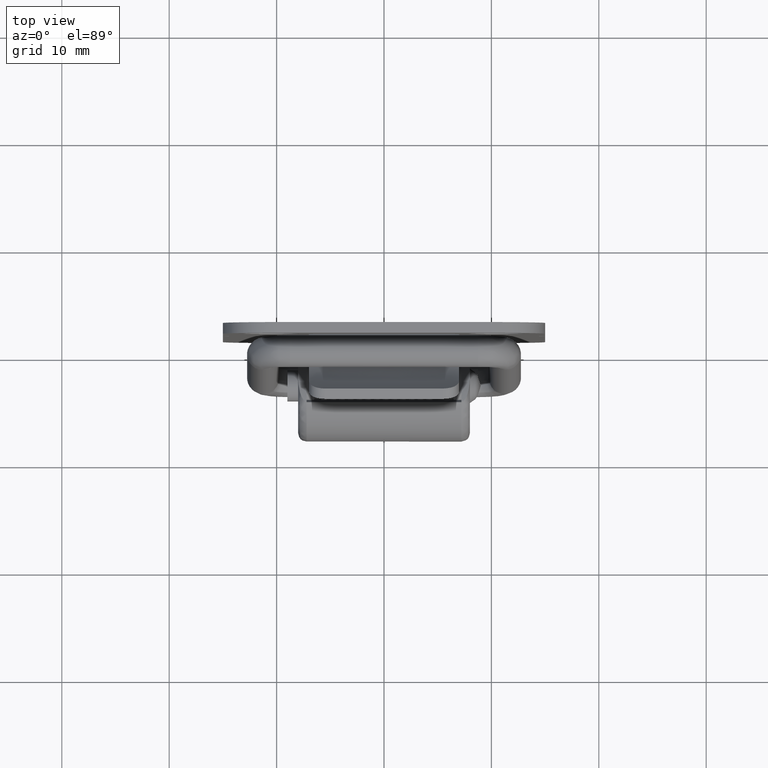
[diagram: clean part render]
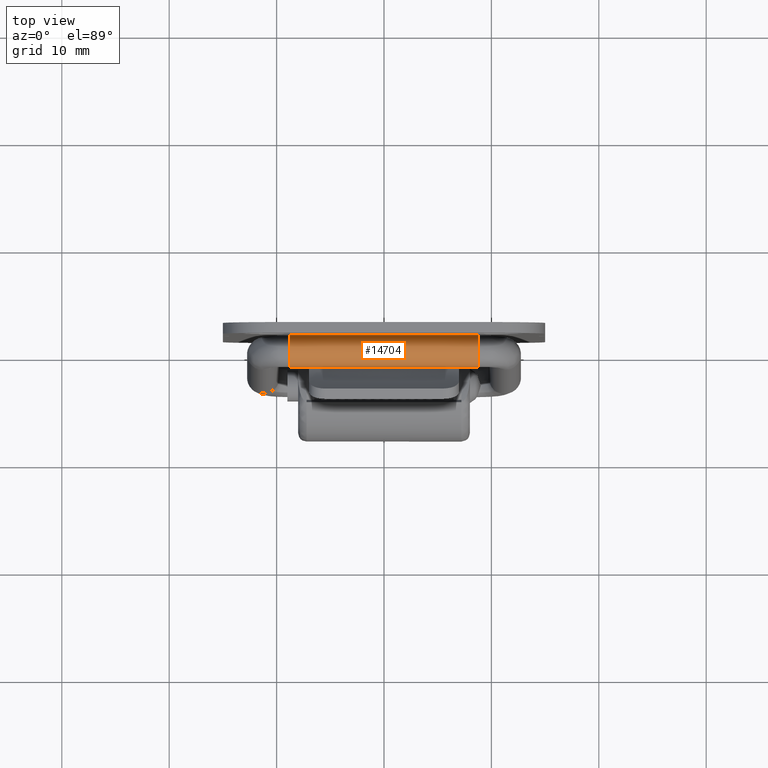
[diagram: same view with one face highlighted and labeled with its STEP entity id]
A machine part, top view. The second image highlights one B-rep face of the part: STEP entity #14704.
In plain terms, the highlighted face is a freeform B-spline surface patch.
Its self-contained STEP definition (entity closure, byte-faithful):
#14562=CARTESIAN_POINT('',(0.234948679502595,-9.187500000000004,-1.481485567850872));
#14563=CARTESIAN_POINT('',(0.012398297319986,-9.187500000000002,-1.516779804518793));
#14564=CARTESIAN_POINT('',(-0.210699301480883,-9.187500000000002,-1.485128309121532));
#14565=CARTESIAN_POINT('',(-1.695827500109997,-9.187500000000002,-1.274428917483493));
#14566=CARTESIAN_POINT('',(-1.485128108471958,-9.187500000000002,0.210699281145622));
#14567=CARTESIAN_POINT('',(-1.274428716833919,-9.187500000000002,1.695827479774737));
#14568=CARTESIAN_POINT('',(0.210699481795196,-9.187500000000002,1.485128088136697));
#14569=CARTESIAN_POINT('',(1.695827680424311,-9.187500000000002,1.274428696498658));
#14570=CARTESIAN_POINT('',(1.485128288786271,-9.187500000000002,-0.210699502130457));
#14571=CARTESIAN_POINT('',(0.234948679502595,9.198437500000001,-1.481485567850875));
#14572=CARTESIAN_POINT('',(0.012398297319986,9.198437500000001,-1.516779804518796));
#14573=CARTESIAN_POINT('',(-0.210699301480883,9.198437500000001,-1.485128309121536));
#14574=CARTESIAN_POINT('',(-1.695827500109997,9.198437500000001,-1.274428917483496));
#14575=CARTESIAN_POINT('',(-1.485128108471959,9.198437500000001,0.210699281145619));
#14576=CARTESIAN_POINT('',(-1.274428716833919,9.198437500000001,1.695827479774734));
#14577=CARTESIAN_POINT('',(0.210699481795196,9.198437500000001,1.485128088136694));
#14578=CARTESIAN_POINT('',(1.695827680424310,9.198437500000001,1.274428696498654));
#14579=CARTESIAN_POINT('',(1.485128288786271,9.198437500000001,-0.210699502130460));
#14587=(BOUNDED_SURFACE()B_SPLINE_SURFACE(2,1,((#14562,#14571),(#14563,#14572),(#14564,#14573),(#14565,#14574),(#14566,#14575),(#14567,#14576),(#14568,#14577),(#14569,#14578),(#14570,#14579)),.UNSPECIFIED.,.F.,.F.,.U.)B_SPLINE_SURFACE_WITH_KNOTS((3,2,2,2,3),(2,2),(1.256637061435917,1.570796326794897,3.141592653589793,4.712388980384690,6.283185307179586),(0.0,18.385937500000011),.UNSPECIFIED.)GEOMETRIC_REPRESENTATION_ITEM()RATIONAL_B_SPLINE_SURFACE(((0.906274169979695,0.906274169979695),(0.941421356237309,0.941421356237309),(1.0,1.0),(0.707106781186548,0.707106781186548),(1.0,1.0),(0.707106781186548,0.707106781186548),(1.0,1.0),(0.707106781186548,0.707106781186548),(1.0,1.0)))REPRESENTATION_ITEM('')SURFACE());
#14588=CARTESIAN_POINT('',(0.234948017487145,8.749999998100304,-1.481481167774071));
#14589=VERTEX_POINT('',#14588);
#14590=CARTESIAN_POINT('',(-0.300971212194639,8.750000000000000,-1.469495355520995));
#14591=VERTEX_POINT('',#14590);
#14592=CARTESIAN_POINT('',(0.234948017487145,8.749999998100304,-1.481481167774071));
#14593=CARTESIAN_POINT('',(0.057514757330716,8.749999998726720,-1.509560078205854));
#14594=CARTESIAN_POINT('',(-0.124975351299805,8.749999999373596,-1.505542946763044));
#14595=CARTESIAN_POINT('',(-0.300971212194639,8.750000000000000,-1.469495355520995));
#14596=B_SPLINE_CURVE_WITH_KNOTS('',3,(#14592,#14593,#14594,#14595),.UNSPECIFIED.,.F.,.U.,(4,4),(0.942815926448860,1.0),.UNSPECIFIED.);
#14597=EDGE_CURVE('',#14589,#14591,#14596,.T.);
#14598=ORIENTED_EDGE('',*,*,#14597,.F.);
#14599=CARTESIAN_POINT('',(0.234834548971930,-8.750000000000000,-1.480769904402036));
#14600=VERTEX_POINT('',#14599);
#14601=CARTESIAN_POINT('',(0.234834548971930,-8.750000000000000,-1.480769904402036));
#14602=CARTESIAN_POINT('',(0.234948017487145,8.749999998100304,-1.481481167774071));
#14603=QUASI_UNIFORM_CURVE('',1,(#14601,#14602),.UNSPECIFIED.,.F.,.U.);
#14604=EDGE_CURVE('',#14600,#14589,#14603,.T.);
#14605=ORIENTED_EDGE('',*,*,#14604,.F.);
#14606=CARTESIAN_POINT('',(-0.300971212191427,-8.750000000000000,-1.469495355521338));
#14607=VERTEX_POINT('',#14606);
#14608=CARTESIAN_POINT('',(0.234834548971930,-8.750000000000000,-1.480769904402036));
#14609=CARTESIAN_POINT('',(0.057415215886559,-8.750000000000000,-1.508821733874064));
#14610=CARTESIAN_POINT('',(-0.124925341568860,-8.750000000000000,-1.505780076765714));
#14611=CARTESIAN_POINT('',(-0.300971212191427,-8.750000000000000,-1.469495355521338));
#14612=B_SPLINE_CURVE_WITH_KNOTS('',3,(#14608,#14609,#14610,#14611),.UNSPECIFIED.,.F.,.U.,(4,4),(0.942811831421918,1.0),.UNSPECIFIED.);
#14613=EDGE_CURVE('',#14600,#14607,#14612,.T.);
#14614=ORIENTED_EDGE('',*,*,#14613,.T.);
#14615=CARTESIAN_POINT('',(-1.277211263324430,-8.750000000000000,-0.786531434700518));
#14616=VERTEX_POINT('',#14615);
#14617=CARTESIAN_POINT('',(-0.300971212191427,-8.750000000000000,-1.469495355521338));
#14618=CARTESIAN_POINT('',(-0.685684167713759,-8.750000000000000,-1.390701252821366));
#14619=CARTESIAN_POINT('',(-1.035591516033910,-8.750000000000000,-1.154020298337340));
#14620=CARTESIAN_POINT('',(-1.260561392944605,-8.750000000000000,-0.813161521987061));
#14621=CARTESIAN_POINT('',(-1.268995973455001,-8.750000000000000,-0.799912482649086));
#14622=CARTESIAN_POINT('',(-1.277211263324430,-8.750000000000000,-0.786531434700518));
#14623=B_SPLINE_CURVE_WITH_KNOTS('',3,(#14617,#14618,#14619,#14620,#14621,#14622),.UNSPECIFIED.,.F.,.U.,(4,2,4),(0.0,0.125000000000000,0.129999936305518),.UNSPECIFIED.);
#14624=EDGE_CURVE('',#14607,#14616,#14623,.T.);
#14625=ORIENTED_EDGE('',*,*,#14624,.T.);
#14626=CARTESIAN_POINT('',(0.300971392505741,-8.750000000000000,1.469495134536499));
#14627=VERTEX_POINT('',#14626);
#14628=CARTESIAN_POINT('',(-1.277211263324430,-8.750000000000000,-0.786531434700518));
#14629=CARTESIAN_POINT('',(-1.474376912028825,-8.750000000000000,-0.465388414669396));
#14630=CARTESIAN_POINT('',(-1.545137533613732,-8.750000000000000,-0.068353441478012));
#14631=CARTESIAN_POINT('',(-1.390701052171790,-8.750000000000000,0.685684147378497));
#14632=CARTESIAN_POINT('',(-1.154020097687766,-8.750000000000000,1.035591495698648));
#14633=CARTESIAN_POINT('',(-0.498522129694129,-8.750000000000000,1.468226086345650));
#14634=CARTESIAN_POINT('',(-0.083741563016591,-8.750000000000000,1.548289237236470));
#14635=CARTESIAN_POINT('',(0.300971392505741,-8.750000000000000,1.469495134536499));
#14636=B_SPLINE_CURVE_WITH_KNOTS('',3,(#14628,#14629,#14630,#14631,#14632,#14633,#14634,#14635),.UNSPECIFIED.,.F.,.U.,(4,2,2,4),(0.129999936305518,0.250000000000000,0.375000000000000,0.500000000000000),.UNSPECIFIED.);
#14637=EDGE_CURVE('',#14616,#14627,#14636,.T.);
#14638=ORIENTED_EDGE('',*,*,#14637,.T.);
#14639=CARTESIAN_POINT('',(1.485070431111980,-8.750000000000000,-0.210691657934962));
#14640=VERTEX_POINT('',#14639);
#14641=CARTESIAN_POINT('',(0.300971392505741,-8.750000000000000,1.469495134536499));
#14642=CARTESIAN_POINT('',(0.685692394655319,-8.750000000000000,1.390699909535196));
#14643=CARTESIAN_POINT('',(1.035610856399254,-8.750000000000000,1.154017405009156));
#14644=CARTESIAN_POINT('',(1.451436264549223,-8.750000000000000,0.524016746203205));
#14645=CARTESIAN_POINT('',(1.535056507294143,-8.750000000000000,0.147751064500071));
#14646=CARTESIAN_POINT('',(1.485070431111980,-8.750000000000000,-0.210691657934962));
#14647=B_SPLINE_CURVE_WITH_KNOTS('',3,(#14641,#14642,#14643,#14644,#14645,#14646),.UNSPECIFIED.,.F.,.U.,(4,2,4),(0.500000000000000,0.625000000000000,0.740274466526902),.UNSPECIFIED.);
#14648=EDGE_CURVE('',#14627,#14640,#14647,.T.);
#14649=ORIENTED_EDGE('',*,*,#14648,.T.);
#14650=CARTESIAN_POINT('',(1.485115681013875,8.749999999774772,-0.210697862169448));
#14651=VERTEX_POINT('',#14650);
#14652=CARTESIAN_POINT('',(1.485070431111980,-8.750000000000000,-0.210691657934962));
#14653=CARTESIAN_POINT('',(1.485115681013875,8.749999999774772,-0.210697862169448));
#14654=QUASI_UNIFORM_CURVE('',1,(#14652,#14653),.UNSPECIFIED.,.F.,.U.);
#14655=EDGE_CURVE('',#14640,#14651,#14654,.T.);
#14656=ORIENTED_EDGE('',*,*,#14655,.T.);
#14657=CARTESIAN_POINT('',(0.300971392508889,8.750000000000000,1.469495134535852));
#14658=VERTEX_POINT('',#14657);
#14659=CARTESIAN_POINT('',(0.300971392508889,8.750000000000000,1.469495134535852));
#14660=CARTESIAN_POINT('',(0.493328746080253,8.749999999984331,1.430097959337417));
#14661=CARTESIAN_POINT('',(0.677777101665591,8.749999999965736,1.352469234202852));
#14662=CARTESIAN_POINT('',(1.003054578361098,8.749999999925498,1.132449383128741));
#14663=CARTESIAN_POINT('',(1.143755716674190,8.749999999903872,0.990144825605304));
#14664=CARTESIAN_POINT('',(1.360075415743255,8.749999999860862,0.662395501695072));
#14665=CARTESIAN_POINT('',(1.435608863934931,8.749999999839497,0.477079690671680));
#14666=CARTESIAN_POINT('',(1.504248968910819,8.749999999803316,0.121488317158921));
#14667=CARTESIAN_POINT('',(1.508329226735683,8.749999999788010,-0.046534284541260));
#14668=CARTESIAN_POINT('',(1.485115681013875,8.749999999774772,-0.210697862169448));
#14669=B_SPLINE_CURVE_WITH_KNOTS('',3,(#14659,#14660,#14661,#14662,#14663,#14664,#14665,#14666,#14667,#14668),.UNSPECIFIED.,.F.,.U.,(4,2,2,2,4),(0.500000000000000,0.562500000000000,0.625000000000000,0.687500000000000,0.740277500986761),.UNSPECIFIED.);
#14670=EDGE_CURVE('',#14658,#14651,#14669,.T.);
#14671=ORIENTED_EDGE('',*,*,#14670,.F.);
#14672=CARTESIAN_POINT('',(-1.277222180295753,8.750000000000000,-0.786537789642880));
#14673=VERTEX_POINT('',#14672);
#14674=CARTESIAN_POINT('',(-1.277222180295753,8.750000000000000,-0.786537789642880));
#14675=CARTESIAN_POINT('',(-1.371894740633392,8.750000000000002,-0.632697585280586));
#14676=CARTESIAN_POINT('',(-1.438566161543682,8.750000000000000,-0.461654593371977));
#14677=CARTESIAN_POINT('',(-1.510017677032694,8.750000000000002,-0.091493986709031));
#14678=CARTESIAN_POINT('',(-1.508883797693321,8.750000000000000,0.108619888646939));
#14679=CARTESIAN_POINT('',(-1.430091102834024,8.750000000000002,0.493331977793412));
#14680=CARTESIAN_POINT('',(-1.352463288874920,8.750000000000000,0.677778823804816));
#14681=CARTESIAN_POINT('',(-1.132445289626875,8.750000000000002,1.003053107733508));
#14682=CARTESIAN_POINT('',(-0.990141672025425,8.750000000000000,1.143752564109936));
#14683=CARTESIAN_POINT('',(-0.662394114306017,8.750000000000002,1.360068981711430));
#14684=CARTESIAN_POINT('',(-0.477079128856539,8.750000000000000,1.435600831663316));
#14685=CARTESIAN_POINT('',(-0.091498607289537,8.750000000000002,1.510027169270994));
#14686=CARTESIAN_POINT('',(0.108615219357814,8.750000000000000,1.508892373341090));
#14687=CARTESIAN_POINT('',(0.300971392508889,8.750000000000000,1.469495134535852));
#14688=B_SPLINE_CURVE_WITH_KNOTS('',3,(#14674,#14675,#14676,#14677,#14678,#14679,#14680,#14681,#14682,#14683,#14684,#14685,#14686,#14687),.UNSPECIFIED.,.F.,.U.,(4,2,2,2,2,2,4),(0.129999066636990,0.187500000000000,0.250000000000000,0.312500000000000,0.375000000000000,0.437500000000000,0.500000000000000),.UNSPECIFIED.);
#14689=EDGE_CURVE('',#14673,#14658,#14688,.T.);
#14690=ORIENTED_EDGE('',*,*,#14689,.F.);
#14691=CARTESIAN_POINT('',(-0.300971212194639,8.750000000000000,-1.469495355520995));
#14692=CARTESIAN_POINT('',(-0.493326063281300,8.750000000000000,-1.430097303126636));
#14693=CARTESIAN_POINT('',(-0.677771613582764,8.749999999999998,-1.352467638173098));
#14694=CARTESIAN_POINT('',(-1.003043296942557,8.750000000000002,-1.132445923870481));
#14695=CARTESIAN_POINT('',(-1.143741449483238,8.750000000000000,-0.990140443670610));
#14696=CARTESIAN_POINT('',(-1.260549393936294,8.750000000000000,-0.813157344305476));
#14697=CARTESIAN_POINT('',(-1.268991608580226,8.750000000000000,-0.799912579477373));
#14698=CARTESIAN_POINT('',(-1.277222180295753,8.750000000000000,-0.786537789642880));
#14699=B_SPLINE_CURVE_WITH_KNOTS('',3,(#14691,#14692,#14693,#14694,#14695,#14696,#14697,#14698),.UNSPECIFIED.,.F.,.U.,(4,2,2,4),(0.0,0.062500000000000,0.125000000000000,0.129999066636990),.UNSPECIFIED.);
#14700=EDGE_CURVE('',#14591,#14673,#14699,.T.);
#14701=ORIENTED_EDGE('',*,*,#14700,.F.);
#14702=EDGE_LOOP('',(#14598,#14605,#14614,#14625,#14638,#14649,#14656,#14671,#14690,#14701));
#14703=FACE_OUTER_BOUND('',#14702,.T.);
#14704=ADVANCED_FACE('',(#14703),#14587,.T.);